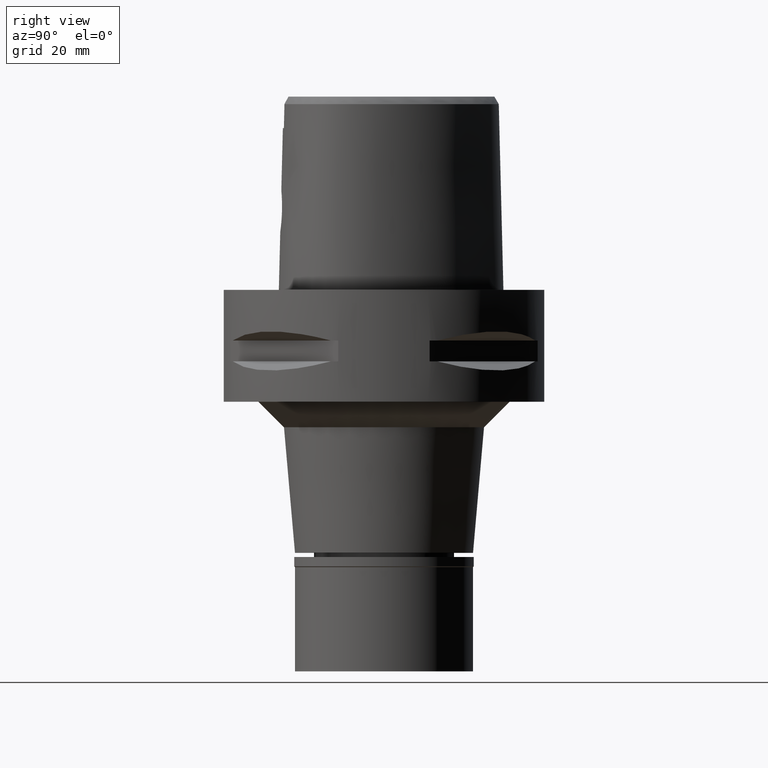
[diagram: clean part render]
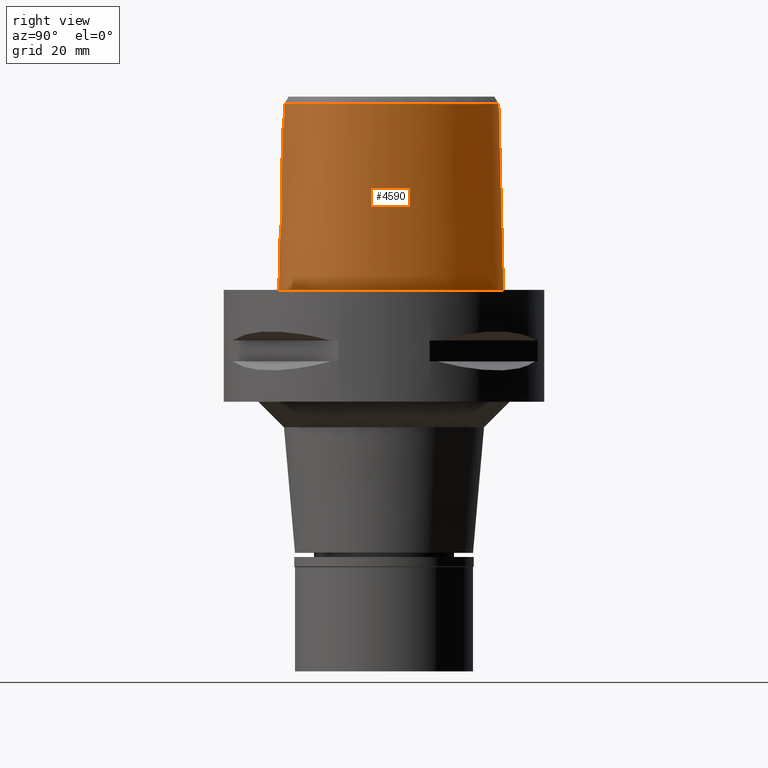
[diagram: same view with one face highlighted and labeled with its STEP entity id]
A machine part, right view. The second image highlights one B-rep face of the part: STEP entity #4590.
In plain terms, the highlighted face is a freeform B-spline surface patch.
Its self-contained STEP definition (entity closure, byte-faithful):
#4 = CARTESIAN_POINT ( 'NONE',  ( 3.724565236758289100, -20.12895583071323102, 13.90933279692779223 ) ) ;
#29 = CARTESIAN_POINT ( 'NONE',  ( 3.660461985446087141, -20.13966045177699016, 13.76627806847252344 ) ) ;
#53 = CARTESIAN_POINT ( 'NONE',  ( 3.597711930326736418, -20.14976618034784295, 13.63772622920103039 ) ) ;
#67 = CARTESIAN_POINT ( 'NONE',  ( 2.503154195450612018, -19.81241979350847160, 31.80000012137772103 ) ) ;
#71 = CARTESIAN_POINT ( 'NONE',  ( 11.13012654429999948, -18.61140112948000080, 11.93048371498000115 ) ) ;
#79 = CARTESIAN_POINT ( 'NONE',  ( 4.018792218787123005, -20.06920543202639706, 14.98220688250860988 ) ) ;
#87 = CARTESIAN_POINT ( 'NONE',  ( 3.704239288984441103, -19.64128042389065598, 33.37395322129999897 ) ) ;
#93 = CARTESIAN_POINT ( 'NONE',  ( 14.21104790476000090, -16.40237689503000240, 37.25232670188000128 ) ) ;
#118 = CARTESIAN_POINT ( 'NONE',  ( 20.16779727191000049, 4.447573620468999955, 24.59140520843000033 ) ) ;
#123 = CARTESIAN_POINT ( 'NONE',  ( -1.479169189994000259E-11, 22.56201468012000078, 36.52186680743999858 ) ) ;
#128 = B_SPLINE_CURVE_WITH_KNOTS ( 'NONE', 3,
 ( #1401, #2852, #984, #1036, #2550, #3681, #1160, #3460, #1474, #2230, #1085, #2695, #2606, #1927, #820, #4121, #1499, #3435, #4101, #724, #4514, #2326, #3831, #1187, #404, #4196, #4567, #3729, #53, #29, #451, #2253, #3057, #4, #3032, #3752, #1133, #1551, #4173, #4468, #4860, #1947, #79, #2963, #354, #4143, #1850, #3362, #3387, #2985, #749, #772, #3804, #4492, #1111, #3006, #2627, #2672, #376, #1873, #2650, #2280, #3780, #1903, #3409, #1523, #4542, #797, #2304, #424, #4265, #2049, #3480, #3876, #173, #871, #2426, #893, #498, #4291, #547, #4634, #4607, #4656, #2347, #1666, #3170, #3076, #4216 ),
 .UNSPECIFIED., .F., .F.,
 ( 4, 2, 2, 1, 1, 1, 2, 2, 2, 2, 2, 1, 1, 1, 2, 2, 2, 2, 2, 1, 1, 1, 1, 2, 2, 2, 2, 1, 2, 2, 2, 2, 1, 1, 1, 2, 2, 2, 2, 2, 1, 1, 1, 2, 2, 2, 2, 2, 1, 1, 1, 1, 2, 2, 4 ),
 ( 0.0000000000000000000, 0.06250000000005009881, 0.09375000000007514822, 0.1093750000000876521, 0.1171875000000938277, 0.1210937500000968114, 0.1230468750000982964, 0.1250000000000997813, 0.1875000000001452449, 0.2187500000001679767, 0.2343750000001795231, 0.2421875000001852407, 0.2460937500001880995, 0.2480468750001894596, 0.2490234375001902367, 0.2500000000001910139, 0.3125000000002384759, 0.3437500000002620681, 0.3593750000002735590, 0.3671875000002797207, 0.3710937500002827738, 0.3730468750002843836, 0.3740234375002851608, 0.3745117187502851608, 0.3750000000002851608, 0.4375000000002702283, 0.4687500000002626233, 0.4843750000002590150, 0.4921875000002570166, 0.5000000000002550182, 0.5625000000002398082, 0.5937500000002325917, 0.6093750000002290390, 0.6171875000002272627, 0.6210937500002259304, 0.6230468750002252643, 0.6250000000002245981, 0.6875000000001925127, 0.7187500000001763034, 0.7343750000001685319, 0.7421875000001649791, 0.7460937500001634248, 0.7480468750001624256, 0.7490234375001618705, 0.7500000000001613154, 0.8125000000001281197, 0.8437500000001116884, 0.8593750000001036948, 0.8671875000000993650, 0.8710937500000969225, 0.8730468750000953682, 0.8740234375000945910, 0.8745117187500942579, 0.8750000000000938138, 1.000000000000000000 ),
 .UNSPECIFIED. ) ;
#143 = CARTESIAN_POINT ( 'NONE',  ( 20.96392238474999914, -8.820258279932000178, 24.59140520843000033 ) ) ;
#169 = CARTESIAN_POINT ( 'NONE',  ( 21.94536975308000137, -4.102220499438999468, 11.93048371498000115 ) ) ;
#173 = CARTESIAN_POINT ( 'NONE',  ( 1.952153875019470464, -20.14384200277678261, 19.05099225123039375 ) ) ;
#190 = CARTESIAN_POINT ( 'NONE',  ( 17.53318571658000025, 10.12278926308000138, 24.59140520843000033 ) ) ;
#215 = CARTESIAN_POINT ( 'NONE',  ( 16.39211273426374760, -14.95758104716276904, 36.52186680739949054 ) ) ;
#239 = CARTESIAN_POINT ( 'NONE',  ( 2.503210897899000198, 22.99958935645000224, 11.93048371498000115 ) ) ;
#263 = ORIENTED_EDGE ( 'NONE', *, *, #4458, .T. ) ;
#280 = CARTESIAN_POINT ( 'NONE',  ( -1.661817726879000115E-12, -20.38876923348000147, 11.44999999999999929 ) ) ;
#283 = ORIENTED_EDGE ( 'NONE', *, *, #1546, .F. ) ;
#318 = VERTEX_POINT ( 'NONE', #2634 ) ;
#354 = CARTESIAN_POINT ( 'NONE',  ( 4.044161317350432938, -20.05898088619960973, 15.26741593814364251 ) ) ;
#376 = CARTESIAN_POINT ( 'NONE',  ( 3.752226893919130557, -20.04763986456778468, 17.02424915154746543 ) ) ;
#399 = FACE_OUTER_BOUND ( 'NONE', #1235, .T. ) ;
#404 = CARTESIAN_POINT ( 'NONE',  ( 2.851308123281966367, -20.24367260891570197, 12.62379014332761784 ) ) ;
#424 = CARTESIAN_POINT ( 'NONE',  ( 2.894689697199585687, -20.09689611330811232, 18.33254243672248762 ) ) ;
#428 = VERTEX_POINT ( 'NONE', #805 ) ;
#441 = EDGE_CURVE ( 'NONE', #1009, #562, #4876, .T. ) ;
#443 = CARTESIAN_POINT ( 'NONE',  ( 21.57281239501000059, -9.001246195892999680, -0.7304377784682001273 ) ) ;
#451 = CARTESIAN_POINT ( 'NONE',  ( 3.678618831368462683, -20.13665784040059847, 13.80537687187593221 ) ) ;
#470 = CARTESIAN_POINT ( 'NONE',  ( -0.4520500665953000041, -20.37458443845999767, 11.93048371498000115 ) ) ;
#492 = CARTESIAN_POINT ( 'NONE',  ( 17.88993642252999905, -13.52675007844999833, 37.25232670188000128 ) ) ;
#498 = CARTESIAN_POINT ( 'NONE',  ( 1.630200151567749778, -20.15684786929195127, 19.20746681432318326 ) ) ;
#508 = DIRECTION ( 'NONE',  ( 2.208693532884959812E-12, 0.02499051290944955331, -0.9996876883629820520 ) ) ;
#513 = CARTESIAN_POINT ( 'NONE',  ( 19.81622817482999821, -11.44090466989000099, 24.59140520843000033 ) ) ;
#520 = CARTESIAN_POINT ( 'NONE',  ( -1.332771036024000057E-11, -20.67499999999999716, 1.592799965995999763E-13 ) ) ;
#538 = CARTESIAN_POINT ( 'NONE',  ( 6.288476573115999280, -20.00290568216999887, 11.93048371498000115 ) ) ;
#547 = CARTESIAN_POINT ( 'NONE',  ( 1.579854425207989355, -20.15867393781742223, 19.22916383618724012 ) ) ;
#562 = VERTEX_POINT ( 'NONE', #1307 ) ;
#564 = CARTESIAN_POINT ( 'NONE',  ( 17.25769838220999830, 9.963736457934000867, 37.25232670188000128 ) ) ;
#568 = CARTESIAN_POINT ( 'NONE',  ( 21.07429999882787541, -0.4408303635840717938, 36.52186680739949054 ) ) ;
#585 = CARTESIAN_POINT ( 'NONE',  ( 10.55288403430999900, 18.94467584606999822, 11.93048371498000115 ) ) ;
#614 = CARTESIAN_POINT ( 'NONE',  ( 2.564517728817371278, 23.29328125891723289, -3.622317246230587900E-07 ) ) ;
#634 = CARTESIAN_POINT ( 'NONE',  ( 14.17879756135999969, 15.44741193256000145, 11.93048371498000115 ) ) ;
#636 = CARTESIAN_POINT ( 'NONE',  ( 21.32871516739688289, -4.105831245034097243, 36.52186680739949054 ) ) ;
#653 = CARTESIAN_POINT ( 'NONE',  ( 7.259695396742000817, 20.78233557684000132, 24.59140520843000033 ) ) ;
#724 = CARTESIAN_POINT ( 'NONE',  ( 2.755188568515135827, -20.25369424001747376, 12.53113181469252346 ) ) ;
#725 = ORIENTED_EDGE ( 'NONE', *, *, #4036, .F. ) ;
#749 = CARTESIAN_POINT ( 'NONE',  ( 3.953657772074506749, -20.04132931399287898, 16.38799616439016305 ) ) ;
#771 = CARTESIAN_POINT ( 'NONE',  ( 3.736696120837999402, -19.67778323291999953, 31.80000004972999861 ) ) ;
#772 = CARTESIAN_POINT ( 'NONE',  ( 3.922356955782465349, -20.04161897558876504, 16.51768514291872592 ) ) ;
#797 = CARTESIAN_POINT ( 'NONE',  ( 2.929416866841686229, -20.09489859744535067, 18.29673185189199103 ) ) ;
#805 = CARTESIAN_POINT ( 'NONE',  ( 0.0000000000000000000, -20.18628283968999781, 19.55000000000000071 ) ) ;
#820 = CARTESIAN_POINT ( 'NONE',  ( 2.279331589943585090, -20.29725701781623215, 12.14967298897495951 ) ) ;
#835 = CARTESIAN_POINT ( 'NONE',  ( 3.736696120837999402, -19.67778323291999953, 31.80000004972999861 ) ) ;
#837 = CARTESIAN_POINT ( 'NONE',  ( 11.02138178523000178, -18.31230449649000036, 24.59140520843000033 ) ) ;
#866 = CARTESIAN_POINT ( 'NONE',  ( 21.05621891086000019, -0.4440251945197000172, 37.25232670188000128 ) ) ;
#871 = CARTESIAN_POINT ( 'NONE',  ( 1.850247305784340934, -20.14815102364944721, 19.10391384635718381 ) ) ;
#886 = CARTESIAN_POINT ( 'NONE',  ( 22.26285556786000086, -4.100361500033999462, -0.7304377784682001273 ) ) ;
#893 = CARTESIAN_POINT ( 'NONE',  ( 1.682393699706688839, -20.15487728834037640, 19.18422343148514386 ) ) ;
#912 = CARTESIAN_POINT ( 'NONE',  ( 1.886855603399999914, -20.71358919787000019, -0.7304377784682001273 ) ) ;
#917 = CARTESIAN_POINT ( 'NONE',  ( 20.74942741736723661, 4.657187503087075520, -3.622317246230587900E-07 ) ) ;
#932 = CARTESIAN_POINT ( 'NONE',  ( 10.14358062342000011, 18.45723401937000219, 37.25232670188000128 ) ) ;
#984 = CARTESIAN_POINT ( 'NONE',  ( 0.5088542039655480353, -20.38532917087901808, 11.47347132026943761 ) ) ;
#1002 = CARTESIAN_POINT ( 'NONE',  ( 17.90324024158019611, -13.53935104436619596, 36.52186680739949054 ) ) ;
#1009 = VERTEX_POINT ( 'NONE', #771 ) ;
#1024 = CARTESIAN_POINT ( 'NONE',  ( 0.5826623248930999921, 22.88447431846000057, 24.59140520843000033 ) ) ;
#1026 = CARTESIAN_POINT ( 'NONE',  ( 18.90964962507557701, -12.28759713487997729, 36.52186680739949054 ) ) ;
#1036 = CARTESIAN_POINT ( 'NONE',  ( 0.8967571857118321610, -20.37500898307603947, 11.54833351580997380 ) ) ;
#1065 = DIRECTION ( 'NONE',  ( -1.018537051468978189E-12, -0.02499051295360945474, -0.9996876883618780463 ) ) ;
#1085 = CARTESIAN_POINT ( 'NONE',  ( 1.524528444929567517, -20.34834513848225157, 11.74788234840967149 ) ) ;
#1111 = CARTESIAN_POINT ( 'NONE',  ( 3.793484624612660117, -20.04579049394723000, 16.91915591640622907 ) ) ;
#1133 = CARTESIAN_POINT ( 'NONE',  ( 3.733527171617090357, -20.12744902514674550, 13.93051737272771540 ) ) ;
#1160 = CARTESIAN_POINT ( 'NONE',  ( 1.316591046826760758, -20.35877618767763408, 11.66891439273059738 ) ) ;
#1168 = CARTESIAN_POINT ( 'NONE',  ( 2.113823673604115605, -20.67500000905516089, -3.622317246230588430E-07 ) ) ;
#1187 = CARTESIAN_POINT ( 'NONE',  ( 2.848687277155625086, -20.24395102616656672, 12.62119708890279846 ) ) ;
#1203 = CARTESIAN_POINT ( 'NONE',  ( 14.36818026064999998, -16.67825717416999964, 24.59140520843000033 ) ) ;
#1224 = CARTESIAN_POINT ( 'NONE',  ( 21.31039812350000062, -4.105938498247000190, 37.25232670188000128 ) ) ;
#1235 = EDGE_LOOP ( 'NONE', ( #283, #2206, #3465, #1574, #263, #725, #2518, #4402 ) ) ;
#1249 = CARTESIAN_POINT ( 'NONE',  ( -0.4439347097731000114, -19.74161819804000118, 37.25232670188000128 ) ) ;
#1254 = CARTESIAN_POINT ( 'NONE',  ( 7.108589361577516641, 20.52412316394373448, 36.52186680739949054 ) ) ;
#1257 = CARTESIAN_POINT ( 'NONE',  ( 21.55524826880888867, -8.996025393213916033, -3.622317246230587900E-07 ) ) ;
#1272 = CARTESIAN_POINT ( 'NONE',  ( 19.15132517438000193, -12.46323146097000034, 24.59140520843000033 ) ) ;
#1275 = CARTESIAN_POINT ( 'NONE',  ( 2.376843874104200616, 22.39422497744775953, 36.52186680739949054 ) ) ;
#1296 = CARTESIAN_POINT ( 'NONE',  ( 20.94844326093000220, -10.61175397098999973, -0.7304377784682001273 ) ) ;
#1307 = CARTESIAN_POINT ( 'NONE',  ( 3.637738219117000238, -19.56971420299000286, 36.52185956443999970 ) ) ;
#1317 = CARTESIAN_POINT ( 'NONE',  ( -0.6834384029204000344, 22.83968684930000492, 24.59140520843000033 ) ) ;
#1318 = VECTOR ( 'NONE', #1065, 1000.000000000000114 ) ;
#1339 = CARTESIAN_POINT ( 'NONE',  ( 14.22011350746215008, -16.41829354688619702, 36.52186680739949054 ) ) ;
#1385 = CARTESIAN_POINT ( 'NONE',  ( 5.105252917026999349, 22.54305024470000163, -0.7304377784682001273 ) ) ;
#1401 = CARTESIAN_POINT ( 'NONE',  ( -1.661817726879000115E-12, -20.38876923348000147, 11.44999999999999929 ) ) ;
#1474 = CARTESIAN_POINT ( 'NONE',  ( 1.484672001584305789, -20.35045150493812827, 11.73187516080444581 ) ) ;
#1494 = CARTESIAN_POINT ( 'NONE',  ( 0.0000000000000000000, -20.18628283968999781, 19.55000000000000071 ) ) ;
#1499 = CARTESIAN_POINT ( 'NONE',  ( 2.567156550695518291, -20.27199076143536516, 12.36669236252169668 ) ) ;
#1523 = CARTESIAN_POINT ( 'NONE',  ( 3.016036228352490411, -20.08988840253937269, 18.20323897618127162 ) ) ;
#1537 = LINE ( 'NONE', #2771, #1792 ) ;
#1546 = EDGE_CURVE ( 'NONE', #2746, #1970, #1537, .T. ) ;
#1551 = CARTESIAN_POINT ( 'NONE',  ( 3.734244913657507325, -20.12732855078826688, 13.93222585066099306 ) ) ;
#1560 = CARTESIAN_POINT ( 'NONE',  ( 19.64947366597656142, -12.82525391158355710, -3.622317246230587900E-07 ) ) ;
#1567 = CARTESIAN_POINT ( 'NONE',  ( 1.251533272180086698, -19.88005341395420089, 31.80000012137772103 ) ) ;
#1571 = CARTESIAN_POINT ( 'NONE',  ( 1.853272116950999804, -20.08023975636999836, 24.59140520843000033 ) ) ;
#1574 = ORIENTED_EDGE ( 'NONE', *, *, #1651, .T. ) ;
#1590 = CARTESIAN_POINT ( 'NONE',  ( 21.76083708750000056, -6.805026039639000324, 11.93048371498000115 ) ) ;
#1613 = CARTESIAN_POINT ( 'NONE',  ( 19.86834413213000161, 4.339653603284999939, 37.25232670188000128 ) ) ;
#1618 = CARTESIAN_POINT ( 'NONE',  ( 0.7901461619531520153, 22.56201467849316344, 36.52186680739949054 ) ) ;
#1639 = CARTESIAN_POINT ( 'NONE',  ( -0.6718836823210999620, -20.05378843685999968, 24.59140520843000033 ) ) ;
#1651 = EDGE_CURVE ( 'NONE', #1009, #4835, #3322, .T. ) ;
#1662 = CARTESIAN_POINT ( 'NONE',  ( 21.99640701839999934, -0.2778990157937000216, -0.7304377784682001273 ) ) ;
#1666 = CARTESIAN_POINT ( 'NONE',  ( 1.557971146239815363, -20.15943183565883601, 19.23834600367506553 ) ) ;
#1683 = CARTESIAN_POINT ( 'NONE',  ( 2.438150589513000011, 22.68791632657000079, 24.59140520843000033 ) ) ;
#1720 = EDGE_CURVE ( 'NONE', #318, #3848, #2632, .T. ) ;
#1731 = CARTESIAN_POINT ( 'NONE',  ( 13.69241964024999980, 15.03666378943000126, 37.25232670188000128 ) ) ;
#1792 = VECTOR ( 'NONE', #508, 1000.000000000000114 ) ;
#1837 = CARTESIAN_POINT ( 'NONE',  ( 2.041042029990999821E-08, -19.88004246002000031, 31.80000004972000127 ) ) ;
#1850 = CARTESIAN_POINT ( 'NONE',  ( 4.049380724813693710, -20.05443082861340542, 15.42269879970884361 ) ) ;
#1867 = CARTESIAN_POINT ( 'NONE',  ( 6.839045603659376428E-09, -20.08420636276220250, 23.63333344114120038 ) ) ;
#1873 = CARTESIAN_POINT ( 'NONE',  ( 3.671285929086534505, -20.05143538844593465, 17.22258828995738256 ) ) ;
#1903 = CARTESIAN_POINT ( 'NONE',  ( 3.140045409223567674, -20.08265349468861416, 18.05890270687283206 ) ) ;
#1927 = CARTESIAN_POINT ( 'NONE',  ( 1.943667215399784487, -20.32333223855991022, 11.93701921606991689 ) ) ;
#1940 = CARTESIAN_POINT ( 'NONE',  ( 6.344715577136000206, -20.31619965211999812, -0.7304377784682001273 ) ) ;
#1947 = CARTESIAN_POINT ( 'NONE',  ( 4.000220507638235112, -20.07464113597455579, 14.85320769030679067 ) ) ;
#1957 = CARTESIAN_POINT ( 'NONE',  ( 3.637738219117000238, -19.56971420299000286, 36.52185956443999970 ) ) ;
#1963 = CARTESIAN_POINT ( 'NONE',  ( 18.58171406766999922, -14.18198046720999983, -0.7304377784682001273 ) ) ;
#1970 = VERTEX_POINT ( 'NONE', #3570 ) ;
#1984 = CARTESIAN_POINT ( 'NONE',  ( 2.041042029990999821E-08, -19.88004246002000031, 31.80000004972000127 ) ) ;
#1987 = CARTESIAN_POINT ( 'NONE',  ( 18.89485268744000024, -12.27684366735999966, 37.25232670188000128 ) ) ;
#2010 = CARTESIAN_POINT ( 'NONE',  ( 16.97022731263999873, -15.69280483310000029, -0.7304377784682001273 ) ) ;
#2019 = CARTESIAN_POINT ( 'NONE',  ( 6.341471020820699245, -20.29812500897093486, -3.622317246230587900E-07 ) ) ;
#2044 = CARTESIAN_POINT ( 'NONE',  ( 19.40779766132999740, -12.64961925458000103, 11.93048371498000115 ) ) ;
#2049 = CARTESIAN_POINT ( 'NONE',  ( 2.885257906969631136, -20.09743782012235158, 18.34215240746237185 ) ) ;
#2067 = CARTESIAN_POINT ( 'NONE',  ( 4.987110654809001176, 22.24795277411000072, 11.93048371498000115 ) ) ;
#2074 = EDGE_CURVE ( 'NONE', #3848, #1970, #2553, .T. ) ;
#2092 = CARTESIAN_POINT ( 'NONE',  ( 0.6155340741689999673, 23.51883498002000294, -0.7304377784682001273 ) ) ;
#2113 = CARTESIAN_POINT ( 'NONE',  ( 13.93560860080999930, 15.24203786100000002, 24.59140520843000033 ) ) ;
#2142 = CARTESIAN_POINT ( 'NONE',  ( 3.637738219117000238, -19.56971420299000286, 36.52185956443999970 ) ) ;
#2145 = CARTESIAN_POINT ( 'NONE',  ( 7.571159438939139008, 21.31457032033559784, -3.622317246230587900E-07 ) ) ;
#2160 = CARTESIAN_POINT ( 'NONE',  ( -0.7217521649204999834, 23.47150798943000183, -0.7304377784682001273 ) ) ;
#2193 = B_SPLINE_CURVE_WITH_KNOTS ( 'NONE', 3,
 ( #123, #1618, #1275, #3117, #1254, #4263, #2803, #3945, #3592, #568, #636, #4338, #3671, #3305, #2543, #1026, #1002, #215, #1339, #4041, #3193, #4407, #2142 ),
 .UNSPECIFIED., .F., .F.,
 ( 4, 1, 1, 1, 1, 1, 1, 1, 1, 1, 1, 1, 1, 1, 1, 1, 1, 1, 1, 1, 4 ),
 ( 0.0000000000000000000, 0.04382683003322344895, 0.08765366006602602622, 0.1314804900989339498, 0.1753073201318418595, 0.2629609801974471250, 0.3506146402631577508, 0.4382683003288682655, 0.5259219603945788357, 0.5697487904274866066, 0.6135756204601841013, 0.6574024504930920942, 0.6793158655094932996, 0.7012292805259999762, 0.7231426955424012926, 0.7450561105588026090, 0.7888829405917104909, 0.8327097706245131237, 0.8765366006573158675, 0.9641902607230683486, 1.000000000000000000 ),
 .UNSPECIFIED. ) ;
#2206 = ORIENTED_EDGE ( 'NONE', *, *, #2954, .T. ) ;
#2228 = CARTESIAN_POINT ( 'NONE',  ( -1.479169189994000259E-11, 22.56201468012000078, 36.52186680743999858 ) ) ;
#2230 = CARTESIAN_POINT ( 'NONE',  ( 1.508591639948489327, -20.34919171638797053, 11.74144640657438465 ) ) ;
#2253 = CARTESIAN_POINT ( 'NONE',  ( 3.702296203740218061, -20.13270287055686936, 13.85808836017626078 ) ) ;
#2280 = CARTESIAN_POINT ( 'NONE',  ( 3.355637337853391688, -20.06992529911022771, 17.77149831462862295 ) ) ;
#2304 = CARTESIAN_POINT ( 'NONE',  ( 2.905180100005921418, -20.09629328686739669, 18.32180854148488436 ) ) ;
#2309 = CARTESIAN_POINT ( 'NONE',  ( 14.67337964869117783, -17.21410157039260724, -3.622317246230587900E-07 ) ) ;
#2318 = CARTESIAN_POINT ( 'NONE',  ( 18.12052897091000148, -13.74516020803000060, 24.59140520843000033 ) ) ;
#2326 = CARTESIAN_POINT ( 'NONE',  ( 2.830747297867047152, -20.24585052657449680, 12.60352857784746128 ) ) ;
#2335 = CARTESIAN_POINT ( 'NONE',  ( 3.736696120837999402, -19.67778323291999953, 31.80000004972999861 ) ) ;
#2341 = CARTESIAN_POINT ( 'NONE',  ( 19.66427014826999908, -12.83600704818999994, -0.7304377784682001273 ) ) ;
#2347 = CARTESIAN_POINT ( 'NONE',  ( 1.557566279800885578, -20.15944554039715797, 19.23851415560420364 ) ) ;
#2368 = CARTESIAN_POINT ( 'NONE',  ( 20.76670355148000269, 4.663413654836999989, -0.7304377784682001273 ) ) ;
#2389 = CARTESIAN_POINT ( 'NONE',  ( 21.62788393828999745, -4.104079498843000273, 24.59140520843000033 ) ) ;
#2420 = CARTESIAN_POINT ( 'NONE',  ( 18.35112151928999680, -13.96357033762000022, 11.93048371498000115 ) ) ;
#2426 = CARTESIAN_POINT ( 'NONE',  ( 1.721376567130445956, -20.15335337025550544, 19.16628425524617185 ) ) ;
#2450 = CARTESIAN_POINT ( 'NONE',  ( 7.580410841408999900, 21.33037926504000126, -0.7304377784682001273 ) ) ;
#2490 = CARTESIAN_POINT ( 'NONE',  ( -0.4812391255099000009, 23.48607176534000018, -0.7304377784682001273 ) ) ;
#2518 = ORIENTED_EDGE ( 'NONE', *, *, #1720, .T. ) ;
#2525 = CARTESIAN_POINT ( 'NONE',  ( 10.74572891644512751, 19.17433594446886858, -3.622317246230587900E-07 ) ) ;
#2539 = CARTESIAN_POINT ( 'NONE',  ( -0.7025952839204000488, 23.15559741936999671, 11.93048371498000115 ) ) ;
#2543 = CARTESIAN_POINT ( 'NONE',  ( 19.55745538001331241, -11.29150212657875763, 36.52186680739949054 ) ) ;
#2550 = CARTESIAN_POINT ( 'NONE',  ( 1.026319700152003467, -20.37070890482481289, 11.57988414768880148 ) ) ;
#2553 = B_SPLINE_CURVE_WITH_KNOTS ( 'NONE', 3,
 ( #520, #1168, #2019, #2681, #2309, #3809, #3441, #1560, #3063, #4573, #1257, #2762, #3151, #4292, #917, #2873, #3226, #2525, #2145, #4067, #614, #4044, #3648 ),
 .UNSPECIFIED., .F., .F.,
 ( 4, 1, 1, 1, 1, 1, 1, 1, 1, 1, 1, 1, 1, 1, 1, 1, 1, 1, 1, 1, 4 ),
 ( 0.0000000000000000000, 0.08333333333346000515, 0.1666666666668000230, 0.2083333333334000115, 0.2500000000000000000, 0.2916666666666999919, 0.3125000000000000000, 0.3333333333333000081, 0.3541666666666999919, 0.3750000000000000000, 0.4166666666666999919, 0.4583333333332000326, 0.4999999999998999689, 0.5833333333332000326, 0.6666666666664999852, 0.7499999999998000488, 0.8333333333329999704, 0.8749999999997000177, 0.9166666666664000651, 0.9583333333329999704, 1.000000000000000000 ),
 .UNSPECIFIED. ) ;
#2606 = CARTESIAN_POINT ( 'NONE',  ( 1.731261814981330582, -20.33717881329459232, 11.83287582156663298 ) ) ;
#2627 = CARTESIAN_POINT ( 'NONE',  ( 3.762556981617453999, -20.04716307479056780, 16.99857860801622422 ) ) ;
#2632 = LINE ( 'NONE', #280, #1318 ) ;
#2634 = CARTESIAN_POINT ( 'NONE',  ( -1.661817726879000115E-12, -20.38876923348000147, 11.44999999999999929 ) ) ;
#2644 = CARTESIAN_POINT ( 'NONE',  ( 2.041042029990999821E-08, -19.88004246002000031, 31.80000004972000127 ) ) ;
#2650 = CARTESIAN_POINT ( 'NONE',  ( 3.567294406864204070, -20.05743805661314383, 17.43570058660457178 ) ) ;
#2666 = CARTESIAN_POINT ( 'NONE',  ( -0.6840631436755000294, -20.68668116638000143, -0.7304377784682001273 ) ) ;
#2672 = CARTESIAN_POINT ( 'NONE',  ( 3.756205689348964150, -20.04745481138474617, 17.01442784695228738 ) ) ;
#2681 = CARTESIAN_POINT ( 'NONE',  ( 11.23259757039044970, -18.89324219605645894, -3.622317246230587900E-07 ) ) ;
#2695 = CARTESIAN_POINT ( 'NONE',  ( 1.534487765708697049, -20.34781065942356193, 11.75194865744432704 ) ) ;
#2710 = CARTESIAN_POINT ( 'NONE',  ( 1.836480373726000037, -19.76356503562000100, 37.25232670188000128 ) ) ;
#2732 = CARTESIAN_POINT ( 'NONE',  ( 21.68301098255000170, -0.3332744087023999935, 11.93048371498000115 ) ) ;
#2746 = VERTEX_POINT ( 'NONE', #2228 ) ;
#2756 = CARTESIAN_POINT ( 'NONE',  ( -0.6657939516438999838, -19.73734207210000235, 37.25232670188000128 ) ) ;
#2762 = CARTESIAN_POINT ( 'NONE',  ( 22.05732875222183154, -6.847636720043336567, -3.622317246230587900E-07 ) ) ;
#2771 = CARTESIAN_POINT ( 'NONE',  ( -1.479169189994000259E-11, 22.56201468012000078, 36.52186680743999858 ) ) ;
#2775 = CARTESIAN_POINT ( 'NONE',  ( 20.36913764891999890, -10.35391839323999896, 24.59140520843000033 ) ) ;
#2800 = CARTESIAN_POINT ( 'NONE',  ( 6.175998565073999913, -19.37631774229000214, 37.25232670188000128 ) ) ;
#2803 = CARTESIAN_POINT ( 'NONE',  ( 13.70645019739082571, 15.04851265230507273, 36.52186680739949054 ) ) ;
#2843 = CARTESIAN_POINT ( 'NONE',  ( 10.75753573974999888, 19.18839675941999801, -0.7304377784682001273 ) ) ;
#2852 = CARTESIAN_POINT ( 'NONE',  ( 0.2513761484660798073, -20.38876923347999792, 11.44999999999999751 ) ) ;
#2873 = CARTESIAN_POINT ( 'NONE',  ( 18.06826689315137457, 10.43171875455649733, -3.622317246230587900E-07 ) ) ;
#2899 = CARTESIAN_POINT ( 'NONE',  ( 2.373090281126000178, 22.37624329668000200, 37.25232670188000128 ) ) ;
#2925 = CARTESIAN_POINT ( 'NONE',  ( 17.80867305095000219, 10.28184206823000046, 11.93048371498000115 ) ) ;
#2954 = EDGE_CURVE ( 'NONE', #2746, #562, #2193, .T. ) ;
#2963 = CARTESIAN_POINT ( 'NONE',  ( 4.037267796315844315, -20.06219804070790858, 15.17282436917253463 ) ) ;
#2985 = CARTESIAN_POINT ( 'NONE',  ( 4.027846107598298531, -20.04259343997830811, 15.99874201761274151 ) ) ;
#3006 = CARTESIAN_POINT ( 'NONE',  ( 3.772003676880200551, -20.04673380236324931, 16.97478728271756054 ) ) ;
#3032 = CARTESIAN_POINT ( 'NONE',  ( 3.729875495561287835, -20.12806247595202791, 13.92185105401735790 ) ) ;
#3057 = CARTESIAN_POINT ( 'NONE',  ( 3.713243744523228251, -20.13086262244020830, 13.88296146556770339 ) ) ;
#3063 = CARTESIAN_POINT ( 'NONE',  ( 20.34961799342183397, -11.74885742641077258, -3.622317246230587900E-07 ) ) ;
#3071 = CARTESIAN_POINT ( 'NONE',  ( 14.52531261653000172, -16.95413745331000044, 11.93048371498000115 ) ) ;
#3076 = CARTESIAN_POINT ( 'NONE',  ( 0.4959148709369730068, -20.18628283968999426, 19.55000000000000071 ) ) ;
#3089 = CARTESIAN_POINT ( 'NONE',  ( 21.44619288142000002, -6.759806543440999960, 24.59140520843000033 ) ) ;
#3114 = CARTESIAN_POINT ( 'NONE',  ( 1.870063860174999926, -20.39691447711999928, 11.93048371498000115 ) ) ;
#3117 = CARTESIAN_POINT ( 'NONE',  ( 4.757642236485454035, 21.67478320247677104, 36.52186680739949054 ) ) ;
#3146 = CARTESIAN_POINT ( 'NONE',  ( 6.232237569095000040, -19.68961171223000051, 24.59140520843000033 ) ) ;
#3151 = CARTESIAN_POINT ( 'NONE',  ( 22.24453908762909293, -4.100468749946485580, -3.622317246230587900E-07 ) ) ;
#3165 = CARTESIAN_POINT ( 'NONE',  ( 16.38077680434999905, -14.94316444945000022, 37.25232670188000128 ) ) ;
#3170 = CARTESIAN_POINT ( 'NONE',  ( 1.030824414359027497, -20.17735575263548498, 19.45769726758861395 ) ) ;
#3189 = CARTESIAN_POINT ( 'NONE',  ( 7.420053119074999870, 21.05635742094000307, 11.93048371498000115 ) ) ;
#3193 = CARTESIAN_POINT ( 'NONE',  ( 7.300578979384341416, -19.07170738130653476, 36.52186680739948343 ) ) ;
#3226 = CARTESIAN_POINT ( 'NONE',  ( 14.40795639653769911, 15.64093750587676901, -3.622317246230587900E-07 ) ) ;
#3243 = CARTESIAN_POINT ( 'NONE',  ( -0.4558512647808000140, 22.85344964622999697, 24.59140520843000033 ) ) ;
#3305 = CARTESIAN_POINT ( 'NONE',  ( 20.09619608769126486, -10.23243839430523394, 36.52186680739949054 ) ) ;
#3322 = B_SPLINE_CURVE_WITH_KNOTS ( 'NONE', 3,
 ( #835, #67, #1567, #1984 ),
 .UNSPECIFIED., .F., .F.,
 ( 4, 4 ),
 ( 0.0000000000000000000, 1.000000000000000000 ),
 .UNSPECIFIED. ) ;
#3327 = B_SPLINE_SURFACE_WITH_KNOTS ( 'NONE', 3, 3, ( 
 ( #2666, #3521, #1639, #2756 ),
 ( #4674, #470, #3452, #1249 ),
 ( #912, #3114, #1571, #2710 ),
 ( #1940, #538, #3146, #2800 ),
 ( #4211, #71, #837, #4582 ),
 ( #4309, #3071, #1203, #93 ),
 ( #2010, #3497, #4626, #3165 ),
 ( #1963, #2420, #2318, #492 ),
 ( #2341, #2044, #1272, #1987 ),
 ( #3845, #3823, #513, #3917 ),
 ( #1296, #4260, #2775, #3475 ),
 ( #443, #3544, #143, #4652 ),
 ( #4284, #1590, #3089, #4602 ),
 ( #886, #169, #2389, #1224 ),
 ( #1662, #2732, #4234, #866 ),
 ( #2368, #3869, #118, #1613 ),
 ( #3892, #2925, #190, #564 ),
 ( #3963, #634, #2113, #1731 ),
 ( #2843, #585, #4405, #932 ),
 ( #2450, #3189, #653, #4768 ),
 ( #1385, #2067, #3943, #4016 ),
 ( #3563, #239, #1683, #2899 ),
 ( #2092, #4352, #1024, #4700 ),
 ( #2490, #3616, #3243, #3588 ),
 ( #2160, #2539, #1317, #4039 ) ),
 .UNSPECIFIED., .F., .F., .F.,
 ( 4, 1, 1, 1, 1, 1, 1, 1, 1, 1, 1, 1, 1, 1, 1, 1, 1, 1, 1, 1, 1, 1, 4 ),
 ( 4, 4 ),
 ( -0.008985960173607998938, 0.0000000000000000000, 0.08333333333346000515, 0.1666666666668000230, 0.2083333333334000115, 0.2500000000000000000, 0.2916666666666999919, 0.3125000000000000000, 0.3333333333333000081, 0.3541666666666999919, 0.3750000000000000000, 0.4166666666666999919, 0.4583333333332000326, 0.4999999999998999689, 0.5833333333332000326, 0.6666666666664999852, 0.7499999999998000488, 0.8333333333329999704, 0.8749999999997000177, 0.9166666666664000651, 0.9583333333329999704, 1.000000000000000000, 1.011710456763000199 ),
 ( -1.400013532187999856E-09, 1.000000071401000001 ),
 .UNSPECIFIED. ) ;
#3362 = CARTESIAN_POINT ( 'NONE',  ( 4.049844735620081515, -20.05362776514106571, 15.45232860356095728 ) ) ;
#3387 = CARTESIAN_POINT ( 'NONE',  ( 4.050964264001691184, -20.04628033833271772, 15.73905018414971302 ) ) ;
#3409 = CARTESIAN_POINT ( 'NONE',  ( 3.092131912249016068, -20.08546037682276264, 18.11670063430502609 ) ) ;
#3413 = B_SPLINE_CURVE_WITH_KNOTS ( 'NONE', 3,
 ( #2644, #4166, #1867, #1494 ),
 .UNSPECIFIED., .F., .F.,
 ( 4, 4 ),
 ( 0.0000000000000000000, 1.000000000000000000 ),
 .UNSPECIFIED. ) ;
#3435 = CARTESIAN_POINT ( 'NONE',  ( 2.625084310833361467, -20.26653960826107692, 12.41497262625796694 ) ) ;
#3441 = CARTESIAN_POINT ( 'NONE',  ( 18.56841065801460999, -14.16937988905933388, -3.622317246230587900E-07 ) ) ;
#3452 = CARTESIAN_POINT ( 'NONE',  ( -0.4479923881842000077, -20.05810131824999942, 24.59140520843000033 ) ) ;
#3460 = CARTESIAN_POINT ( 'NONE',  ( 1.428762755792574835, -20.35332046339637557, 11.71012009931774678 ) ) ;
#3465 = ORIENTED_EDGE ( 'NONE', *, *, #441, .F. ) ;
#3475 = CARTESIAN_POINT ( 'NONE',  ( 20.07948484292000302, -10.22500060437000080, 37.25232670188000128 ) ) ;
#3480 = CARTESIAN_POINT ( 'NONE',  ( 2.583921620443292433, -20.11472979019596963, 18.64706413482486980 ) ) ;
#3497 = CARTESIAN_POINT ( 'NONE',  ( 16.77374380987000180, -15.44292470521000027, 11.93048371498000115 ) ) ;
#3521 = CARTESIAN_POINT ( 'NONE',  ( -0.6779734129982999402, -20.37023480162000055, 11.93048371498000115 ) ) ;
#3544 = CARTESIAN_POINT ( 'NONE',  ( 21.26836738987999809, -8.910752237911998108, 11.93048371498000115 ) ) ;
#3563 = CARTESIAN_POINT ( 'NONE',  ( 2.568271206286000030, 23.31126238634000103, -0.7304377784682001273 ) ) ;
#3570 = CARTESIAN_POINT ( 'NONE',  ( 6.589911980603000682E-11, 23.47499999998000320, 1.563934167354999746E-13 ) ) ;
#3588 = CARTESIAN_POINT ( 'NONE',  ( -0.4431573344163000083, 22.53713858667000380, 37.25232670188000128 ) ) ;
#3592 = CARTESIAN_POINT ( 'NONE',  ( 19.88562079789233650, 4.345879946636497237, 36.52186680739949054 ) ) ;
#3616 = CARTESIAN_POINT ( 'NONE',  ( -0.4685451951453999953, 23.16976070577999991, 11.93048371498000115 ) ) ;
#3648 = CARTESIAN_POINT ( 'NONE',  ( 6.589911980603000682E-11, 23.47499999998000320, 1.563934167354999746E-13 ) ) ;
#3671 = CARTESIAN_POINT ( 'NONE',  ( 20.67704204634326359, -8.734985285293367596, 36.52186680739949054 ) ) ;
#3681 = CARTESIAN_POINT ( 'NONE',  ( 1.219953412829072548, -20.36296876397258515, 11.63752038501921504 ) ) ;
#3729 = CARTESIAN_POINT ( 'NONE',  ( 3.544894582988040721, -20.15796719198400311, 13.53692899086544266 ) ) ;
#3752 = CARTESIAN_POINT ( 'NONE',  ( 3.732444482245889983, -20.12763080884699463, 13.92794265499014017 ) ) ;
#3780 = CARTESIAN_POINT ( 'NONE',  ( 3.275796685822916832, -20.07466825331695759, 17.88602787369719493 ) ) ;
#3804 = CARTESIAN_POINT ( 'NONE',  ( 3.865275789573937359, -20.04312002336915555, 16.71105732944677413 ) ) ;
#3809 = CARTESIAN_POINT ( 'NONE',  ( 16.95889173156317398, -15.67838867902471378, -3.622317246230587900E-07 ) ) ;
#3823 = CARTESIAN_POINT ( 'NONE',  ( 20.09084471104999992, -11.59945460159999975, 11.93048371498000115 ) ) ;
#3831 = CARTESIAN_POINT ( 'NONE',  ( 2.841513109418039473, -20.24471186253260058, 12.61411562030363420 ) ) ;
#3838 = CARTESIAN_POINT ( 'NONE',  ( 3.671249151389730514, -19.60525176641679579, 34.94790639287000289 ) ) ;
#3845 = CARTESIAN_POINT ( 'NONE',  ( 20.36546124727000162, -11.75800453331999940, -0.7304377784682001273 ) ) ;
#3848 = VERTEX_POINT ( 'NONE', #4616 ) ;
#3869 = CARTESIAN_POINT ( 'NONE',  ( 20.46725041168999581, 4.555493637652999972, 11.93048371498000115 ) ) ;
#3876 = CARTESIAN_POINT ( 'NONE',  ( 2.297783408067292754, -20.12839257075295762, 18.84581743223057515 ) ) ;
#3892 = CARTESIAN_POINT ( 'NONE',  ( 18.08416038532999792, 10.44089487337999955, -0.7304377784682001273 ) ) ;
#3917 = CARTESIAN_POINT ( 'NONE',  ( 19.54161163861000361, -11.28235473817999868, 37.25232670188000128 ) ) ;
#3943 = CARTESIAN_POINT ( 'NONE',  ( 4.868968392590000249, 21.95285530351999981, 24.59140520843000033 ) ) ;
#3945 = CARTESIAN_POINT ( 'NONE',  ( 17.27359236348922522, 9.972912859140180331, 36.52186680739949054 ) ) ;
#3963 = CARTESIAN_POINT ( 'NONE',  ( 14.42198652191999919, 15.65278600412999666, -0.7304377784682001273 ) ) ;
#4016 = CARTESIAN_POINT ( 'NONE',  ( 4.750826130372000300, 21.65775783292999890, 37.25232670188000128 ) ) ;
#4036 = EDGE_CURVE ( 'NONE', #318, #428, #128, .T. ) ;
#4039 = CARTESIAN_POINT ( 'NONE',  ( -0.6642815219202999888, 22.52377627923999981, 37.25232670188000128 ) ) ;
#4041 = CARTESIAN_POINT ( 'NONE',  ( 10.91891095221480334, -18.03046396093074222, 36.52186680739949054 ) ) ;
#4044 = CARTESIAN_POINT ( 'NONE',  ( 0.8548392429502066348, 23.47500000905867523, -3.622317246230587900E-07 ) ) ;
#4067 = CARTESIAN_POINT ( 'NONE',  ( 5.098437020663727282, 22.52602539907029922, -3.622317246230587900E-07 ) ) ;
#4101 = CARTESIAN_POINT ( 'NONE',  ( 2.711843115199195520, -20.25803129358452281, 12.49169527765603327 ) ) ;
#4121 = CARTESIAN_POINT ( 'NONE',  ( 2.393968007884900828, -20.28768105112805387, 12.22997626848692221 ) ) ;
#4143 = CARTESIAN_POINT ( 'NONE',  ( 4.047724359191007260, -20.05619354341769522, 15.36076192305668542 ) ) ;
#4166 = CARTESIAN_POINT ( 'NONE',  ( 6.819089044856640561E-09, -19.98212988583438587, 27.71666688228246400 ) ) ;
#4173 = CARTESIAN_POINT ( 'NONE',  ( 3.734094417005442867, -20.12735377753963917, 13.93186612300169180 ) ) ;
#4196 = CARTESIAN_POINT ( 'NONE',  ( 3.146972348962836730, -20.21214698346514282, 12.91782459454729448 ) ) ;
#4211 = CARTESIAN_POINT ( 'NONE',  ( 11.23887130337999984, -18.91049776247999858, -0.7304377784682001273 ) ) ;
#4216 = CARTESIAN_POINT ( 'NONE',  ( 0.0000000000000000000, -20.18628283968999781, 19.55000000000000071 ) ) ;
#4234 = CARTESIAN_POINT ( 'NONE',  ( 21.36961494671000139, -0.3886498016111000209, 24.59140520843000033 ) ) ;
#4260 = CARTESIAN_POINT ( 'NONE',  ( 20.65879045491999833, -10.48283618211999979, 11.93048371498000115 ) ) ;
#4263 = CARTESIAN_POINT ( 'NONE',  ( 10.15538781006478608, 18.47129526702408597, 36.52186680739949054 ) ) ;
#4265 = CARTESIAN_POINT ( 'NONE',  ( 2.887673095808311441, -20.09729913146919600, 18.33969526369504521 ) ) ;
#4284 = CARTESIAN_POINT ( 'NONE',  ( 22.07548129357000022, -6.850245535837999888, -0.7304377784682001273 ) ) ;
#4291 = CARTESIAN_POINT ( 'NONE',  ( 1.605671905550569045, -20.15775433572379782, 19.21817028626479029 ) ) ;
#4292 = CARTESIAN_POINT ( 'NONE',  ( 21.97832648683653289, -0.2810937484156692534, -3.622317246230587900E-07 ) ) ;
#4309 = CARTESIAN_POINT ( 'NONE',  ( 14.68244497241999902, -17.23001773245000123, -0.7304377784682001273 ) ) ;
#4338 = CARTESIAN_POINT ( 'NONE',  ( 21.14970177530914341, -6.717195943319514306, 36.52186680739949054 ) ) ;
#4352 = CARTESIAN_POINT ( 'NONE',  ( 0.5990981995310000752, 23.20165464924000176, 11.93048371498000115 ) ) ;
#4402 = ORIENTED_EDGE ( 'NONE', *, *, #2074, .T. ) ;
#4405 = CARTESIAN_POINT ( 'NONE',  ( 10.34823232886999911, 18.70095493272000198, 24.59140520843000033 ) ) ;
#4407 = CARTESIAN_POINT ( 'NONE',  ( 4.467522181836597106, -19.48130276147400153, 36.52186680739949054 ) ) ;
#4458 = EDGE_CURVE ( 'NONE', #4835, #428, #3413, .T. ) ;
#4468 = CARTESIAN_POINT ( 'NONE',  ( 3.845314448591819811, -20.10869664333776186, 14.19711605027603518 ) ) ;
#4492 = CARTESIAN_POINT ( 'NONE',  ( 3.834204395033586454, -20.04413718610597783, 16.80745185735152702 ) ) ;
#4514 = CARTESIAN_POINT ( 'NONE',  ( 2.805596852911060868, -20.24848927578887725, 12.57907091945464195 ) ) ;
#4542 = CARTESIAN_POINT ( 'NONE',  ( 2.976932372069032606, -20.09215684102653654, 18.24646780279811864 ) ) ;
#4567 = CARTESIAN_POINT ( 'NONE',  ( 3.341860011470254577, -20.18696180465925849, 13.19692092420902974 ) ) ;
#4573 = CARTESIAN_POINT ( 'NONE',  ( 20.93173253040876958, -10.60431640993585489, -3.622317246230587900E-07 ) ) ;
#4582 = CARTESIAN_POINT ( 'NONE',  ( 10.91263702615999875, -18.01320786349000258, 37.25232670188000128 ) ) ;
#4590 = ADVANCED_FACE ( 'NONE', ( #399 ), #3327, .T. ) ;
#4602 = CARTESIAN_POINT ( 'NONE',  ( 21.13154867533999948, -6.714587047242000395, 37.25232670188000128 ) ) ;
#4607 = CARTESIAN_POINT ( 'NONE',  ( 1.561726388103520824, -20.15930328972899588, 19.23677888609104514 ) ) ;
#4616 = CARTESIAN_POINT ( 'NONE',  ( -1.332771036024000057E-11, -20.67499999999999716, 1.592799965995999763E-13 ) ) ;
#4626 = CARTESIAN_POINT ( 'NONE',  ( 16.57726030711000220, -15.19304457732999936, 24.59140520843000033 ) ) ;
#4634 = CARTESIAN_POINT ( 'NONE',  ( 1.567651050496237097, -20.15909925334500841, 19.23429967911859251 ) ) ;
#4652 = CARTESIAN_POINT ( 'NONE',  ( 20.65947737963000108, -8.729764321951000383, 37.25232670188000128 ) ) ;
#4656 = CARTESIAN_POINT ( 'NONE',  ( 1.559225251304082738, -20.15938888645503013, 19.23782255107456152 ) ) ;
#4674 = CARTESIAN_POINT ( 'NONE',  ( -0.4561077450063999450, -20.69106755866999947, -0.7304377784682001273 ) ) ;
#4700 = CARTESIAN_POINT ( 'NONE',  ( 0.5662264502550999890, 22.56729398767999939, 37.25232670188000128 ) ) ;
#4768 = CARTESIAN_POINT ( 'NONE',  ( 7.099337674407999899, 20.50831373273999958, 37.25232670188000128 ) ) ;
#4835 = VERTEX_POINT ( 'NONE', #1837 ) ;
#4860 = CARTESIAN_POINT ( 'NONE',  ( 3.923853990515191459, -20.09324057702648503, 14.46255724613399352 ) ) ;
#4876 = B_SPLINE_CURVE_WITH_KNOTS ( 'NONE', 3,
 ( #2335, #87, #3838, #1957 ),
 .UNSPECIFIED., .F., .F.,
 ( 4, 4 ),
 ( 0.0000000000000000000, 1.000000000000000000 ),
 .UNSPECIFIED. ) ;